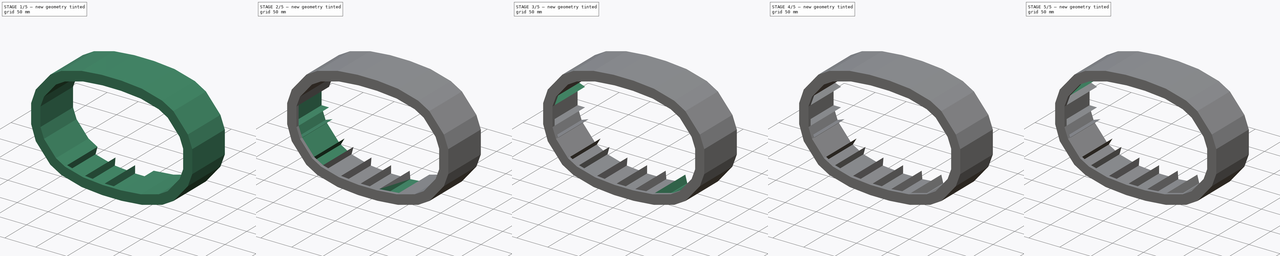
[diagram: build sequence overview — one tinted view per stage of 5, left to right]
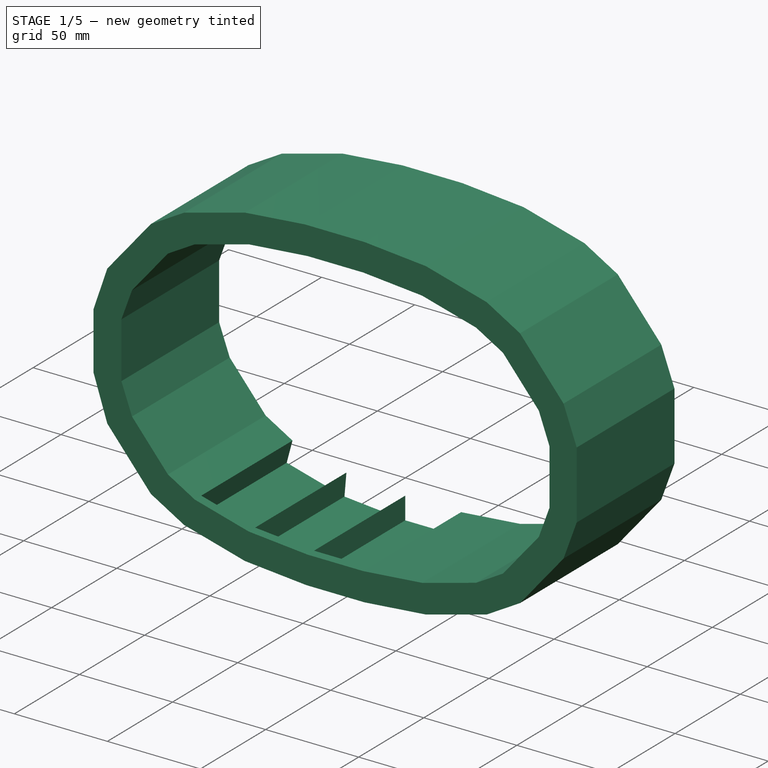
[diagram: stage 1 of 5 — iso view after this stage's code; geometry added in this stage tinted green]
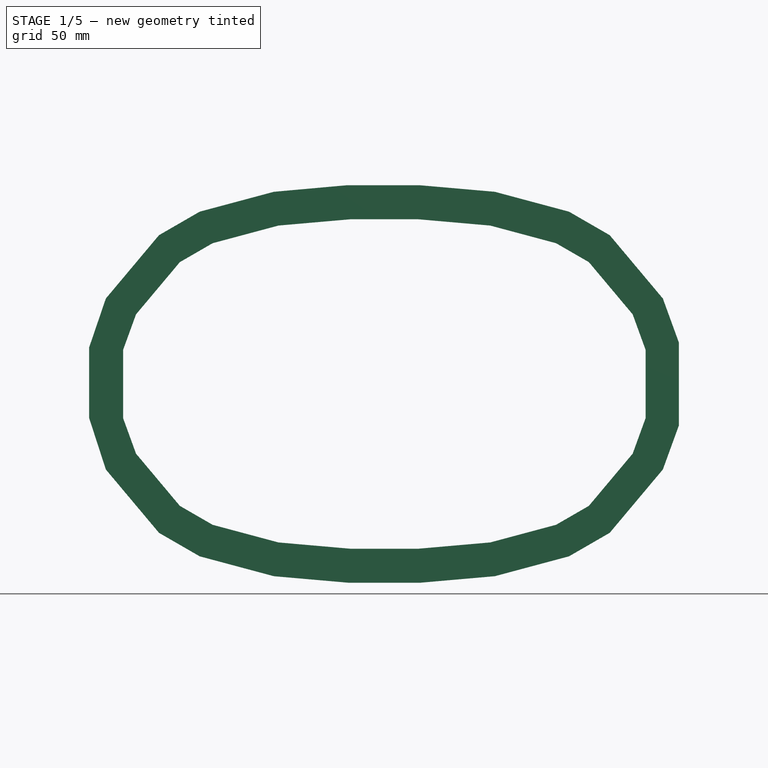
[diagram: stage 1 of 5 — front view after this stage's code; geometry added in this stage tinted green]
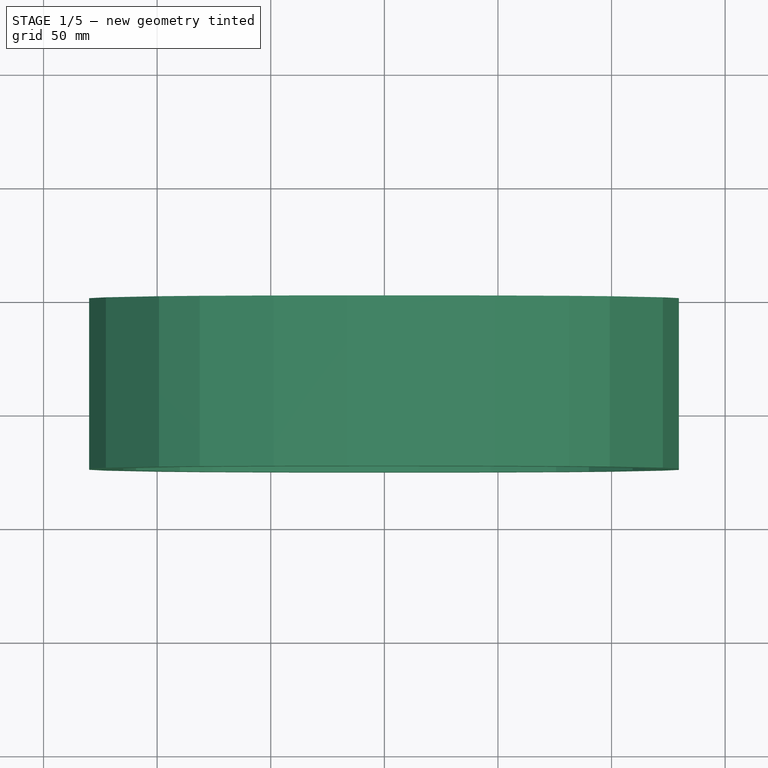
[diagram: stage 1 of 5 — top view after this stage's code; geometry added in this stage tinted green]
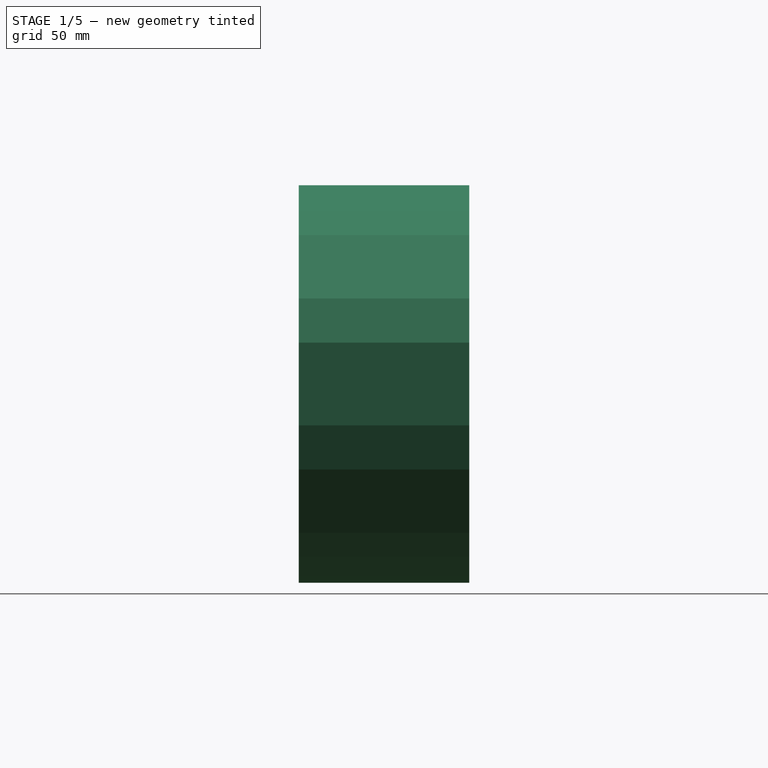
[diagram: stage 1 of 5 — right view after this stage's code; geometry added in this stage tinted green]
FCSTD DOCUMENT  (FreeCAD 0.19R24291 (Git))
Label: top_spr_modl_shell01
License: All rights reserved
LicenseURL: http://en.wikipedia.org/wiki/All_rights_reserved
objects: PartDesign::Pocket×24, PartDesign::Pad×2, Spreadsheet::Sheet×1, Sketcher::SketchObject×1, PartDesign::Body×1
note: 54 computed .brp shape members not serialized (recipe doc carries the construction recipe); baked Part::Feature solids carry a one-line shape summary decoded from their .brp

FEATURE [Spreadsheet::Sheet] Spreadsheet
  cells = B2=top ; C2=spring; D2=module; B4=horizon; C4(hrz)=230; B5=vertical; C5(vrt)=145; B6=spring place; C6(spl)=30; B7=angle10; C7(an10)=5; B8=angle20; C8(an20)=15; B9=angl30; C9(an30)=30; B10=angl50; C10(an50)=50; B11=an70; C11(an70)=70; B12=pockt; C12(pct)=12
FEATURE [Sketcher::SketchObject] Sketch
  FullyConstrained = false
  MapMode = 5
  Placement = pos=(0,0,0) rot=(1,0,0;1.5708rad)
  Support = -> [XZ_Plane]
  expr: Constraints[24] = Spreadsheet.an70
  expr: Constraints[21] = Spreadsheet.an50
  expr: Constraints[18] = Spreadsheet.an30
  expr: Constraints[16] = Spreadsheet.an20
  expr: Constraints[20] = Spreadsheet.spl
  expr: Constraints[15] = Spreadsheet.spl
  expr: Constraints[11] = Spreadsheet.hrz
  expr: Constraints[13] = Spreadsheet.an10
  expr: Constraints[7] = Spreadsheet.spl
  expr: Constraints[6] = Spreadsheet.vrt
  expr: Constraints[2] = Spreadsheet.spl
  sketch-geometry (48):
    g0: LineSegment StartX=-115 StartY=15 StartZ=0 EndX=-115 EndY=-15 EndZ=0
    g1: LineSegment StartX=115 StartY=15 StartZ=0 EndX=115 EndY=-15 EndZ=0
    g2: LineSegment StartX=-15 StartY=72.5 StartZ=0 EndX=15 EndY=72.5 EndZ=0
    g3: LineSegment StartX=-15 StartY=-72.5 StartZ=0 EndX=15 EndY=-72.5 EndZ=0
    g4: LineSegment StartX=15 StartY=72.5 StartZ=0 EndX=46.6098 EndY=69.7345 EndZ=0
    g5: LineSegment StartX=46.6098 StartY=69.7345 StartZ=0 EndX=75.5875 EndY=61.9699 EndZ=0
    g6: LineSegment StartX=75.5875 StartY=61.9699 StartZ=0 EndX=90.0175 EndY=53.6388 EndZ=0
    g7: LineSegment StartX=90.0175 StartY=53.6388 StartZ=0 EndX=109.301 EndY=30.6574 EndZ=0
    g8: LineSegment StartX=109.301 StartY=30.6574 StartZ=0 EndX=115 EndY=15 EndZ=0
    g9: LineSegment StartX=-15 StartY=72.5 StartZ=0 EndX=-46.6098 EndY=69.7345 EndZ=0
    g10: LineSegment StartX=-46.6098 StartY=69.7345 StartZ=0 EndX=-75.5875 EndY=61.9699 EndZ=0
    g11: LineSegment StartX=-75.5875 StartY=61.9699 StartZ=0 EndX=-90.0175 EndY=53.6388 EndZ=0
    g12: LineSegment StartX=-90.0175 StartY=53.6388 StartZ=0 EndX=-109.301 EndY=30.6574 EndZ=0
    g13: LineSegment StartX=-109.301 StartY=30.6574 StartZ=0 EndX=-115 EndY=15 EndZ=0
    g14: LineSegment StartX=-115 StartY=-15 StartZ=0 EndX=-109.301 EndY=-30.6574 EndZ=0
    g15: LineSegment StartX=-109.301 StartY=-30.6574 StartZ=0 EndX=-90.0175 EndY=-53.6388 EndZ=0
    g16: LineSegment StartX=-90.0175 StartY=-53.6388 StartZ=0 EndX=-75.5875 EndY=-61.9699 EndZ=0
    g17: LineSegment StartX=-75.5875 StartY=-61.9699 StartZ=0 EndX=-46.6098 EndY=-69.7345 EndZ=0
    g18: LineSegment StartX=-46.6098 StartY=-69.7345 StartZ=0 EndX=-15 EndY=-72.5 EndZ=0
    g19: LineSegment StartX=15 StartY=-72.5 StartZ=0 EndX=46.6098 EndY=-69.7345 EndZ=0
    g20: LineSegment StartX=46.6098 StartY=-69.7345 StartZ=0 EndX=75.5875 EndY=-61.9699 EndZ=0
    g21: LineSegment StartX=75.5875 StartY=-61.9699 StartZ=0 EndX=90.0175 EndY=-53.6388 EndZ=0
    g22: LineSegment StartX=90.0175 StartY=-53.6388 StartZ=0 EndX=109.301 EndY=-30.6574 EndZ=0
    g23: LineSegment StartX=109.301 StartY=-30.6574 StartZ=0 EndX=115 EndY=-15 EndZ=0
    g24: LineSegment StartX=15.6005 StartY=87.488 StartZ=0 EndX=-16.4336 EndY=87.488 EndZ=0
    g25: LineSegment StartX=-16.4336 StartY=87.488 StartZ=0 EndX=-48.621 EndY=84.5991 EndZ=0
    g26: LineSegment StartX=-48.621 StartY=84.5991 StartZ=0 EndX=-81.2781 EndY=75.8486 EndZ=0
    g27: LineSegment StartX=-81.2781 StartY=75.8486 StartZ=0 EndX=-99.1916 EndY=65.5062 EndZ=0
    g28: LineSegment StartX=-99.1916 StartY=65.5062 StartZ=0 EndX=-122.581 EndY=37.6314 EndZ=0
    g29: LineSegment StartX=-122.581 StartY=37.6314 StartZ=0 EndX=-129.966 EndY=16.0129 EndZ=0
    g30: LineSegment StartX=-129.966 StartY=16.0129 StartZ=0 EndX=-129.966 EndY=-14.8749 EndZ=0
    g31: LineSegment StartX=-129.966 StartY=-14.8749 StartZ=0 EndX=-122.581 EndY=-37.6314 EndZ=0
    g32: LineSegment StartX=-122.581 StartY=-37.6314 StartZ=0 EndX=-99.1916 EndY=-65.5062 EndZ=0
    g33: LineSegment StartX=-99.1916 StartY=-65.5062 StartZ=0 EndX=-81.2781 EndY=-75.8486 EndZ=0
    g34: LineSegment StartX=-81.2781 StartY=-75.8486 StartZ=0 EndX=-48.621 EndY=-84.5991 EndZ=0
    g35: LineSegment StartX=-48.621 StartY=-84.5991 StartZ=0 EndX=-15.6005 EndY=-87.488 EndZ=0
    g36: LineSegment StartX=-15.6005 StartY=-87.488 StartZ=0 EndX=15.6005 EndY=-87.488 EndZ=0
    g37: LineSegment StartX=15.6005 StartY=-87.488 StartZ=0 EndX=48.621 EndY=-84.5991 EndZ=0
    g38: LineSegment StartX=48.621 StartY=-84.5991 StartZ=0 EndX=81.2781 EndY=-75.8486 EndZ=0
    g39: LineSegment StartX=81.2781 StartY=-75.8486 StartZ=0 EndX=99.1916 EndY=-65.5062 EndZ=0
    g40: LineSegment StartX=99.1916 StartY=-65.5062 StartZ=0 EndX=122.581 EndY=-37.6314 EndZ=0
    g41: LineSegment StartX=122.581 StartY=-37.6314 StartZ=0 EndX=129.656 EndY=-18.194 EndZ=0
    g42: LineSegment StartX=129.656 StartY=-18.194 StartZ=0 EndX=129.656 EndY=18.194 EndZ=0
    g43: LineSegment StartX=129.656 StartY=18.194 StartZ=0 EndX=122.581 EndY=37.6314 EndZ=0
    g44: LineSegment StartX=122.581 StartY=37.6314 StartZ=0 EndX=99.1916 EndY=65.5062 EndZ=0
    g45: LineSegment StartX=99.1916 StartY=65.5062 StartZ=0 EndX=81.2781 EndY=75.8486 EndZ=0
    g46: LineSegment StartX=81.2781 StartY=75.8486 StartZ=0 EndX=48.621 EndY=84.5991 EndZ=0
    g47: LineSegment StartX=48.621 StartY=84.5991 StartZ=0 EndX=15.6005 EndY=87.488 EndZ=0
  constraints (109):
    c: Vertical(g0)
    c: Horizontal(g3)
    c: DistanceX(g2,g2) = 30
    c: Symmetric(g2,g2,g-2)
    c: Equal(g3,g2)
    c: Symmetric(g2,g3,g-1)
    c: Distance(g3,g2) = 145
    c: DistanceY(g1,g1) = 30
    c: Equal(g1,g0)
    c: Symmetric(g1,g1,g-1)
    c: Symmetric(g1,g0,g-1)
    c: Distance(g1,g0) = 230
    c: Coincident(g4,g2)
    c: Angle(g4,g-1) = 0.0872665
    c: Coincident(g5,g4)
    c: Distance(g4,g5) = 30
    c: Angle(g5,g-1) = 0.261799
    c: Coincident(g6,g5)
    c: Angle(g6,g-1) = 0.523599
    c: Coincident(g7,g6)
    c: Distance(g6,g7) = 30
    c: Angle(g7,g-1) = 0.872665
    c: Coincident(g8,g7)
    c: Coincident(g8,g1)
    c: Angle(g8,g-1) = 1.22173
    c: Equal(g6,g8)
    c: Coincident(g9,g2)
    c: Symmetric(g9,g4,g-2)
    c: Coincident(g10,g9)
    c: Symmetric(g10,g5,g-2)
    c: Coincident(g11,g10)
    c: Symmetric(g11,g6,g-2)
    c: Coincident(g12,g11)
    c: Symmetric(g12,g7,g-2)
    c: Coincident(g13,g12)
    c: Coincident(g13,g0)
    c: Coincident(g14,g0)
    c: Coincident(g15,g14)
    c: Coincident(g16,g15)
    c: Coincident(g17,g16)
    c: Coincident(g18,g17)
    c: Coincident(g18,g3)
    c: Symmetric(g14,g7,g-1)
    c: Symmetric(g15,g6,g-1)
    c: Symmetric(g16,g5,g-1)
    c: Symmetric(g17,g4,g-1)
    c: Coincident(g19,g3)
    c: Coincident(g20,g19)
    c: Coincident(g21,g20)
    c: Coincident(g22,g21)
    c: Coincident(g23,g22)
    c: Coincident(g23,g1)
    c: Symmetric(g19,g4,g-1)
    c: Symmetric(g20,g5,g-1)
    c: Symmetric(g21,g6,g-1)
    c: Symmetric(g22,g7,g-1)
    c: Horizontal(g24)
    c: Coincident(g25,g24)
    c: Coincident(g26,g25)
    c: Coincident(g27,g26)
    c: Coincident(g28,g27)
    c: Coincident(g29,g28)
    c: Coincident(g30,g29)
    c: Vertical(g30)
    c: Coincident(g31,g30)
    c: Coincident(g32,g31)
    c: Coincident(g33,g32)
    c: Coincident(g34,g33)
    c: Coincident(g35,g34)
    c: Coincident(g36,g35)
    c: Coincident(g37,g36)
    c: Coincident(g38,g37)
    c: Coincident(g39,g38)
    c: Coincident(g40,g39)
    c: Coincident(g41,g40)
    c: Coincident(g42,g41)
    c: Coincident(g43,g42)
    c: Coincident(g44,g43)
    c: Coincident(g45,g44)
    c: Coincident(g46,g45)
    c: Coincident(g47,g46)
    c: Coincident(g47,g24)
    c: Distance(g2,g24) = 15
    c: Distance(g0,g29) = 15
    c: Distance(g1,g42) = 15
    c: Distance(g7,g43) = 15
    c: Distance(g6,g44) = 15
    c: Distance(g5,g45) = 15
    c: Distance(g46,g4) = 15
    c: Parallel(g5,g46)
    c: Parallel(g6,g45)
    c: Parallel(g7,g44)
    c: Parallel(g8,g43)
    c: Parallel(g4,g47)
    c: Symmetric(g42,g41,g-1)
    c: Symmetric(g40,g43,g-1)
    c: Symmetric(g39,g44,g-1)
    c: Symmetric(g38,g45,g-1)
    c: Symmetric(g37,g46,g-1)
    c: Symmetric(g36,g24,g-1)
    c: Symmetric(g35,g24,g-1)
    c: Symmetric(g34,g46,g-1)
    c: Symmetric(g33,g45,g-1)
    c: Symmetric(g32,g44,g-1)
    c: Symmetric(g31,g43,g-1)
    c: Symmetric(g31,g28,g-1)
    c: Symmetric(g32,g27,g-1)
    c: Symmetric(g33,g26,g-1)
    c: Symmetric(g34,g25,g-1)
FEATURE [PartDesign::Pad] Pad
  Direction = (1,1,1)
  Length = 70
  Length2 = 100
  Placement = pos=(0,0,0) rot=(1,0,0;1.5708rad)
  Profile = -> Sketch
  Type = 0
FEATURE [PartDesign::Pad] Pad001
  BaseFeature = -> Pad
  Direction = (1,1,1)
  Length = 5
  Length2 = 100
  Placement = pos=(0,0,0) rot=(1,0,0;1.5708rad)
  Profile = -> Pad [Face50]
  Type = 0
FEATURE [PartDesign::Pocket] Pocket
  BaseFeature = -> Pad001
  Length = 12
  Length2 = 100
  Placement = pos=(0,0,0) rot=(1,0,0;1.5708rad)
  Profile = -> Pad001 [Face43]
  Type = 0
  expr: Length = Spreadsheet.pct
FEATURE [PartDesign::Pocket] Pocket001
  BaseFeature = -> Pocket
  Length = 12
  Length2 = 100
  Placement = pos=(0,0,0) rot=(1,0,0;1.5708rad)
  Profile = -> Pocket [Face41]
  Type = 0
  expr: Length = Spreadsheet.pct
FEATURE [PartDesign::Pocket] Pocket002
  BaseFeature = -> Pocket001
  Length = 12
  Length2 = 100
  Placement = pos=(0,0,0) rot=(1,0,0;1.5708rad)
  Profile = -> Pocket001 [Face44]
  Type = 0
  expr: Length = Spreadsheet.pct
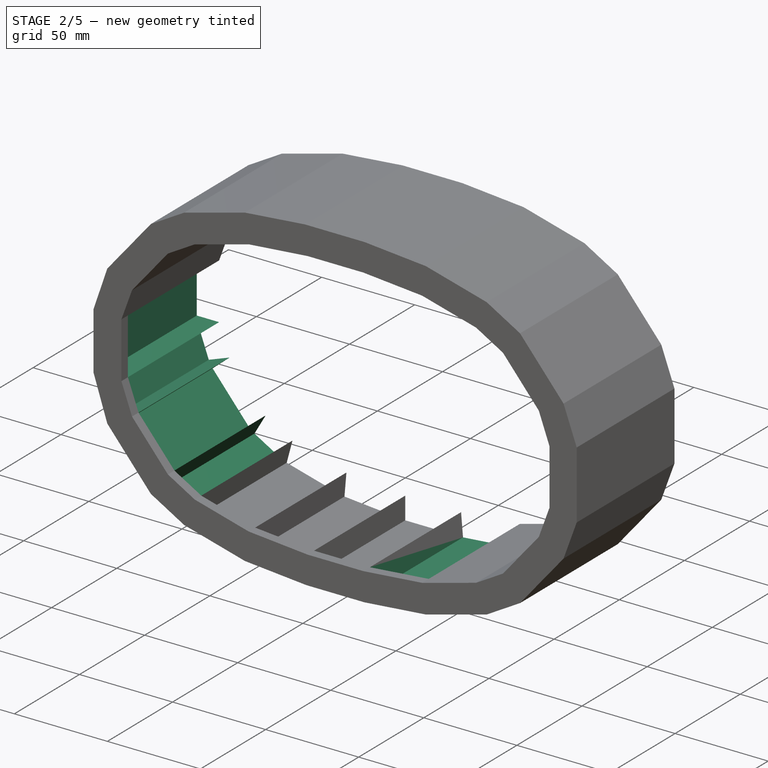
[diagram: stage 2 of 5 — iso view after this stage's code; geometry added in this stage tinted green]
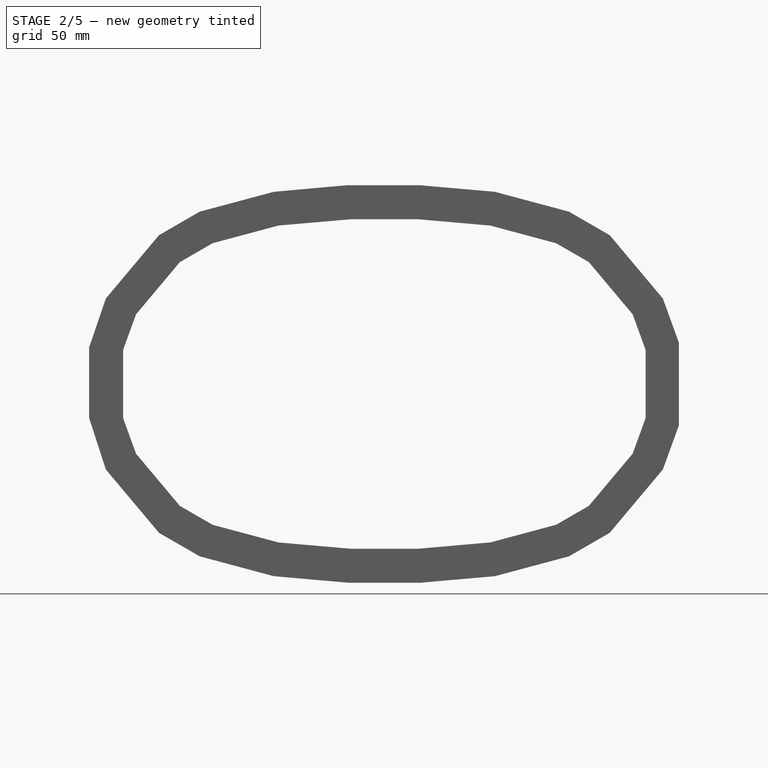
[diagram: stage 2 of 5 — front view after this stage's code; geometry added in this stage tinted green]
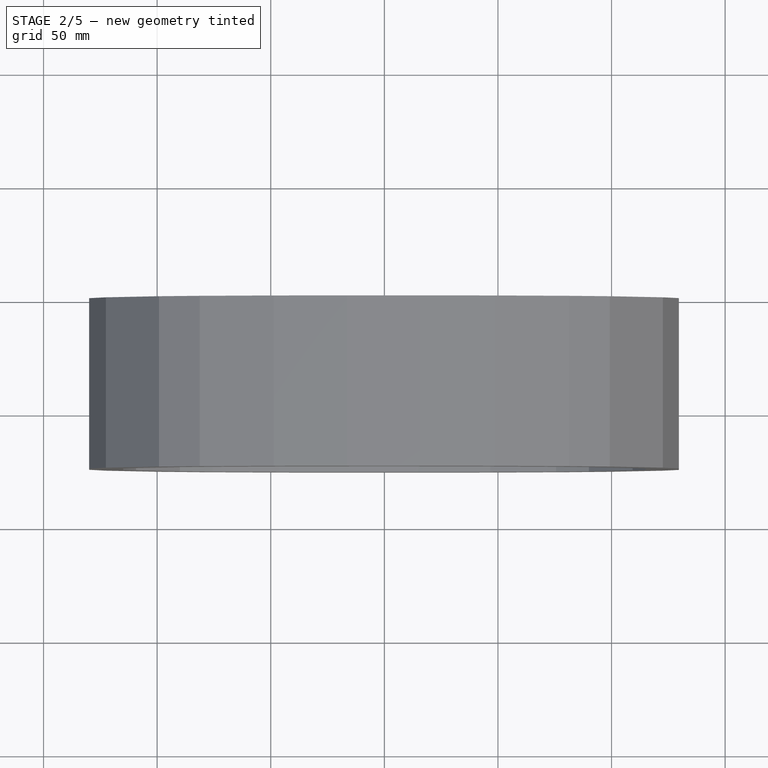
[diagram: stage 2 of 5 — top view after this stage's code; geometry added in this stage tinted green]
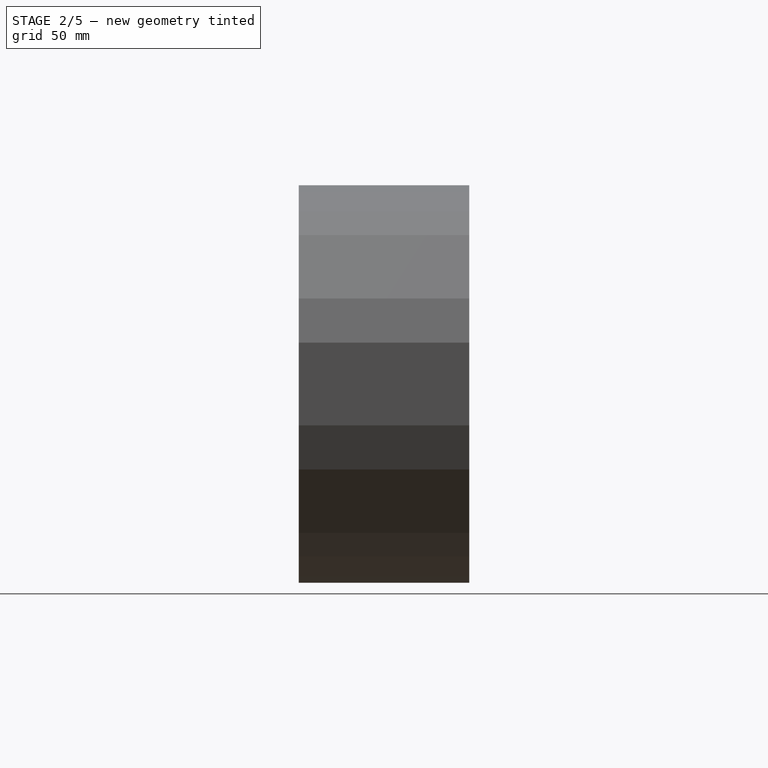
[diagram: stage 2 of 5 — right view after this stage's code; geometry added in this stage tinted green]
FEATURE [PartDesign::Pocket] Pocket003
  BaseFeature = -> Pocket002
  Length = 12
  Length2 = 100
  Placement = pos=(0,0,0) rot=(1,0,0;1.5708rad)
  Profile = -> Pocket002 [Face47]
  Type = 0
  expr: Length = Spreadsheet.pct
FEATURE [PartDesign::Pocket] Pocket004
  BaseFeature = -> Pocket003
  Length = 12
  Length2 = 100
  Placement = pos=(0,0,0) rot=(1,0,0;1.5708rad)
  Profile = -> Pocket003 [Face37]
  Type = 0
  expr: Length = Spreadsheet.pct
FEATURE [PartDesign::Pocket] Pocket005
  BaseFeature = -> Pocket004
  Length = 12
  Length2 = 100
  Placement = pos=(0,0,0) rot=(1,0,0;1.5708rad)
  Profile = -> Pocket004 [Face36]
  Type = 0
  expr: Length = Spreadsheet.pct
FEATURE [PartDesign::Pocket] Pocket006
  BaseFeature = -> Pocket005
  Length = 12
  Length2 = 100
  Placement = pos=(0,0,0) rot=(1,0,0;1.5708rad)
  Profile = -> Pocket005 [Face35]
  Type = 0
  expr: Length = Spreadsheet.pct
FEATURE [PartDesign::Pocket] Pocket007
  BaseFeature = -> Pocket006
  Length = 12
  Length2 = 100
  Placement = pos=(0,0,0) rot=(1,0,0;1.5708rad)
  Profile = -> Pocket006 [Face34]
  Type = 0
  expr: Length = Spreadsheet.pct
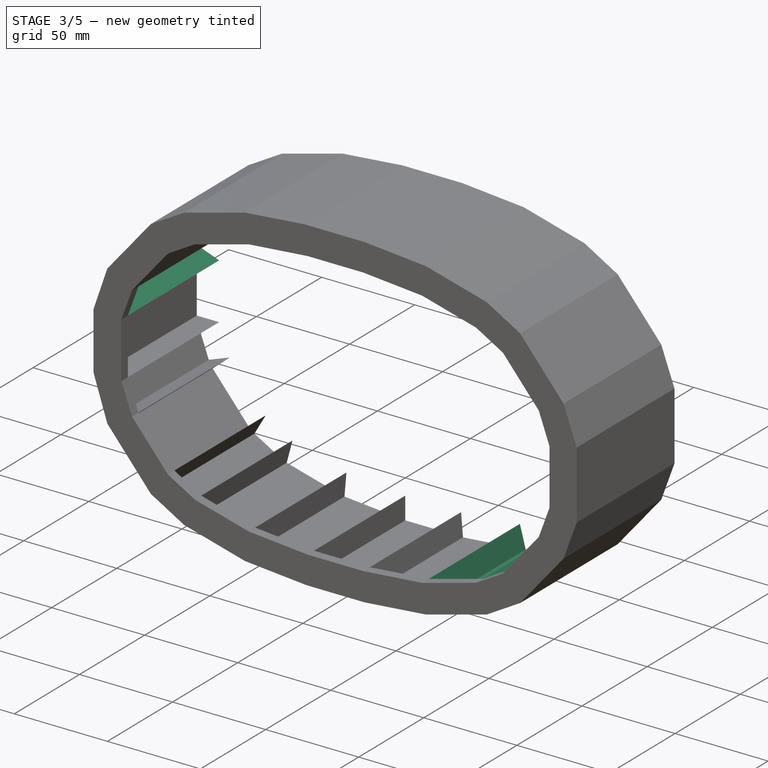
[diagram: stage 3 of 5 — iso view after this stage's code; geometry added in this stage tinted green]
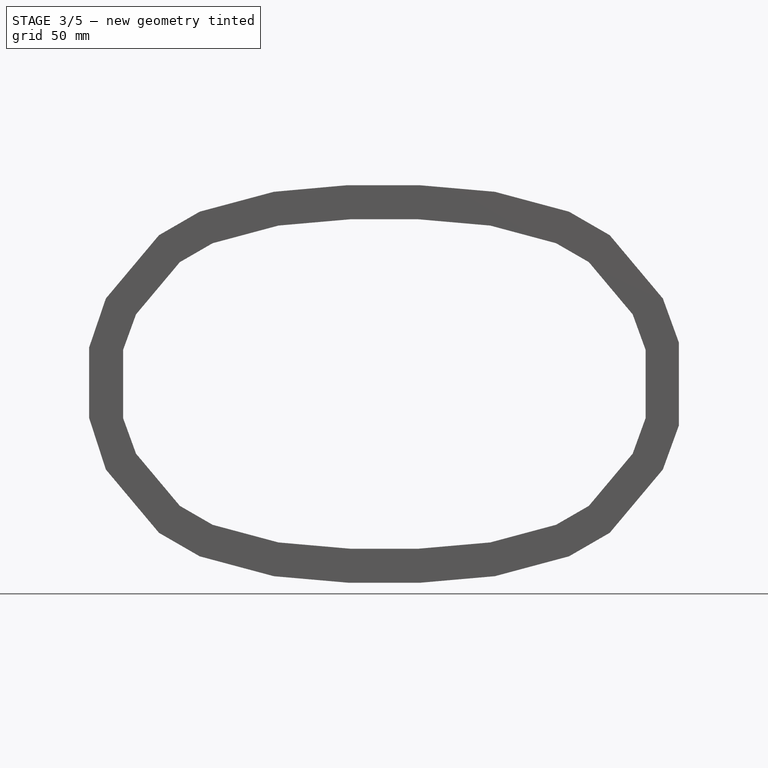
[diagram: stage 3 of 5 — front view after this stage's code; geometry added in this stage tinted green]
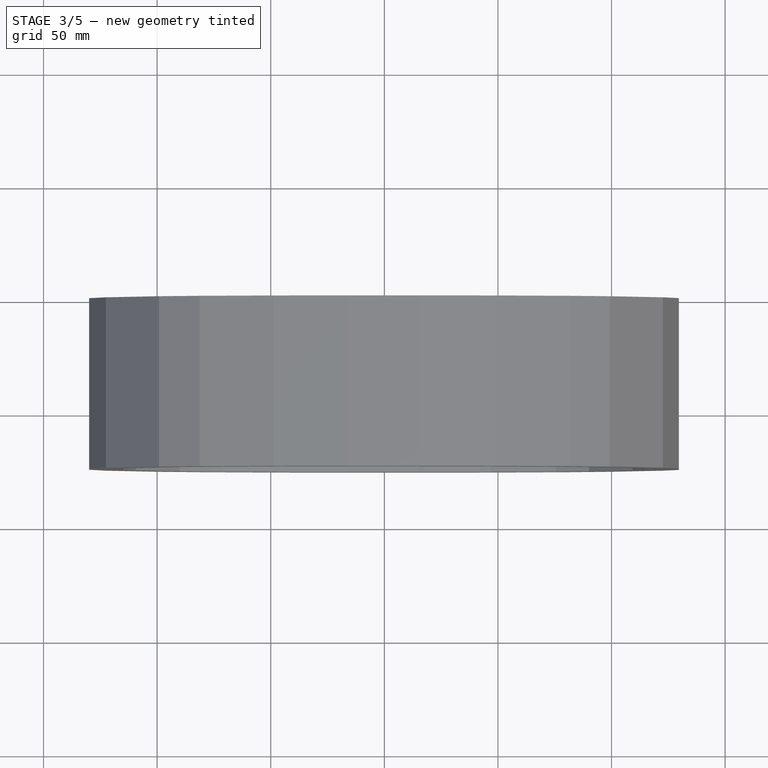
[diagram: stage 3 of 5 — top view after this stage's code; geometry added in this stage tinted green]
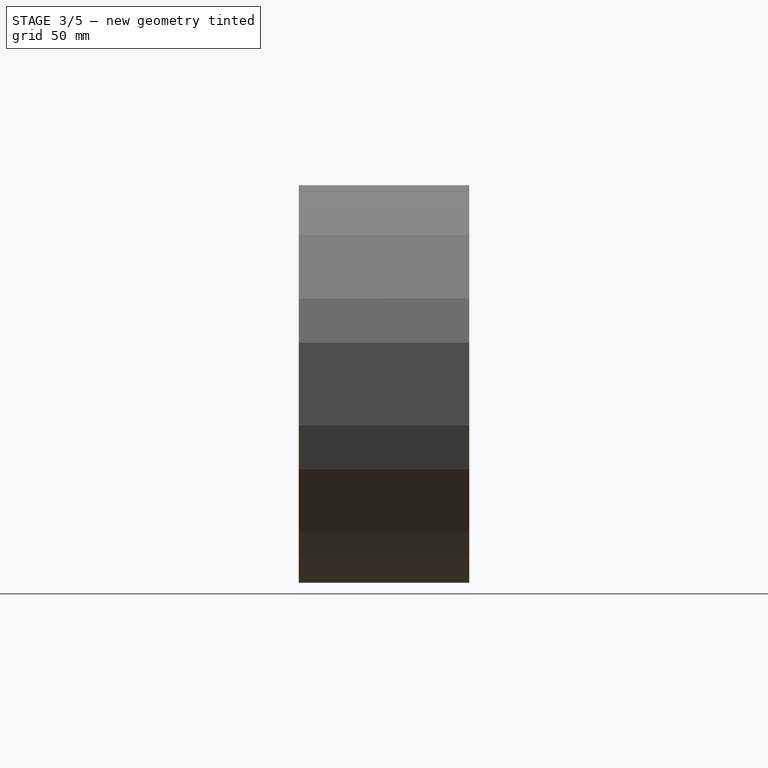
[diagram: stage 3 of 5 — right view after this stage's code; geometry added in this stage tinted green]
FEATURE [PartDesign::Pocket] Pocket008
  BaseFeature = -> Pocket007
  Length = 12
  Length2 = 100
  Placement = pos=(0,0,0) rot=(1,0,0;1.5708rad)
  Profile = -> Pocket007 [Face33]
  Type = 0
  expr: Length = Spreadsheet.pct
FEATURE [PartDesign::Pocket] Pocket009
  BaseFeature = -> Pocket008
  Length = 12
  Length2 = 100
  Placement = pos=(0,0,0) rot=(1,0,0;1.5708rad)
  Profile = -> Pocket008 [Face60]
  Type = 0
  expr: Length = Spreadsheet.pct
FEATURE [PartDesign::Pocket] Pocket010
  BaseFeature = -> Pocket009
  Length = 12
  Length2 = 100
  Placement = pos=(0,0,0) rot=(1,0,0;1.5708rad)
  Profile = -> Pocket009 [Face63]
  Type = 0
  expr: Length = Spreadsheet.pct
FEATURE [PartDesign::Pocket] Pocket011
  BaseFeature = -> Pocket010
  Length = 12
  Length2 = 100
  Placement = pos=(0,0,0) rot=(1,0,0;1.5708rad)
  Profile = -> Pocket010 [Face66]
  Type = 0
  expr: Length = Spreadsheet.pct
FEATURE [PartDesign::Pocket] Pocket012
  BaseFeature = -> Pocket011
  Length = 12
  Length2 = 100
  Placement = pos=(0,0,0) rot=(1,0,0;1.5708rad)
  Profile = -> Pocket011 [Face69]
  Type = 0
  expr: Length = Spreadsheet.pct
FEATURE [PartDesign::Pocket] Pocket013
  BaseFeature = -> Pocket012
  Length = 12
  Length2 = 100
  Placement = pos=(0,0,0) rot=(1,0,0;1.5708rad)
  Profile = -> Pocket012 [Face72]
  Type = 0
  expr: Length = Spreadsheet.pct
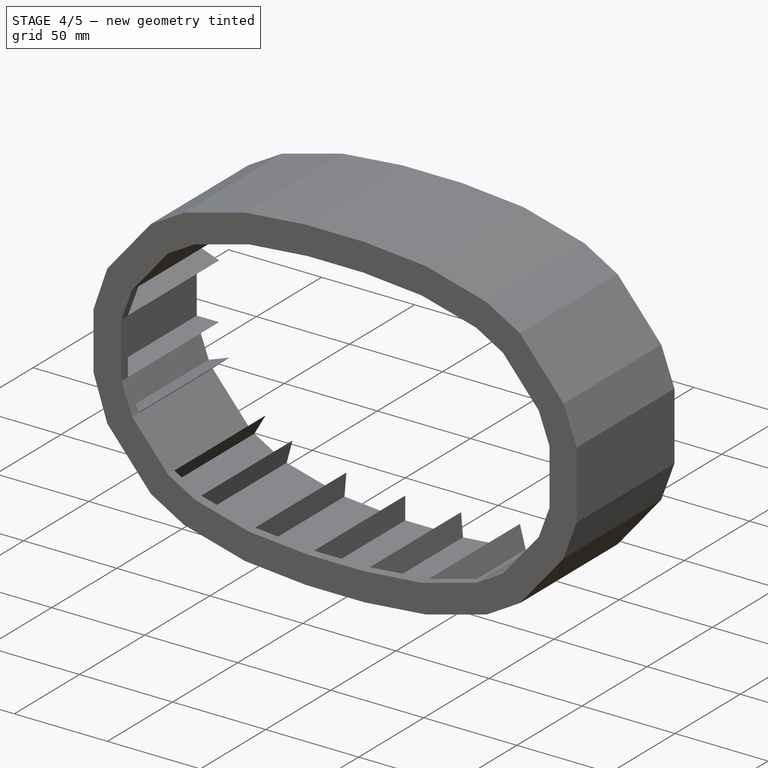
[diagram: stage 4 of 5 — iso view after this stage's code; geometry added in this stage tinted green]
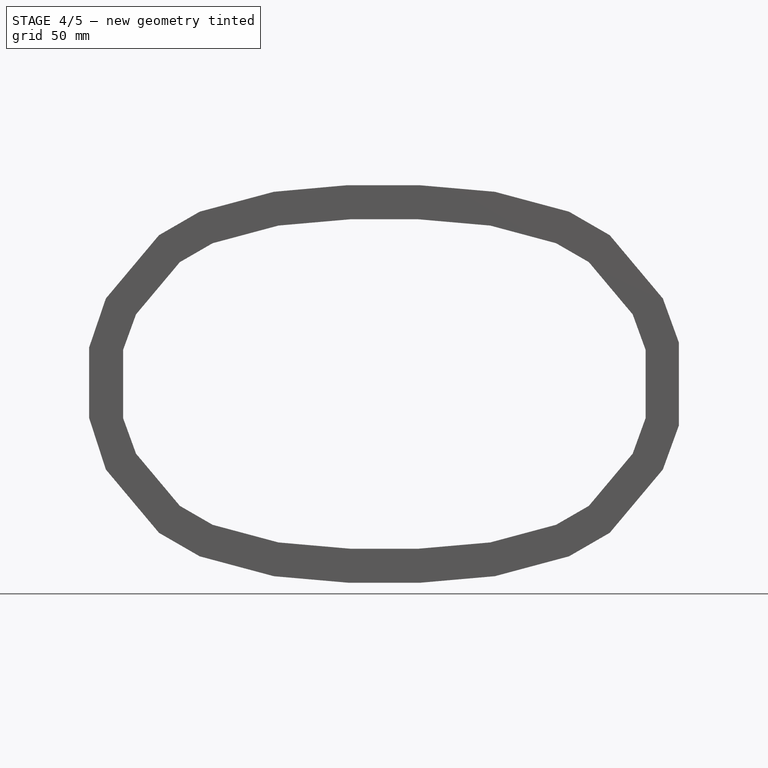
[diagram: stage 4 of 5 — front view after this stage's code; geometry added in this stage tinted green]
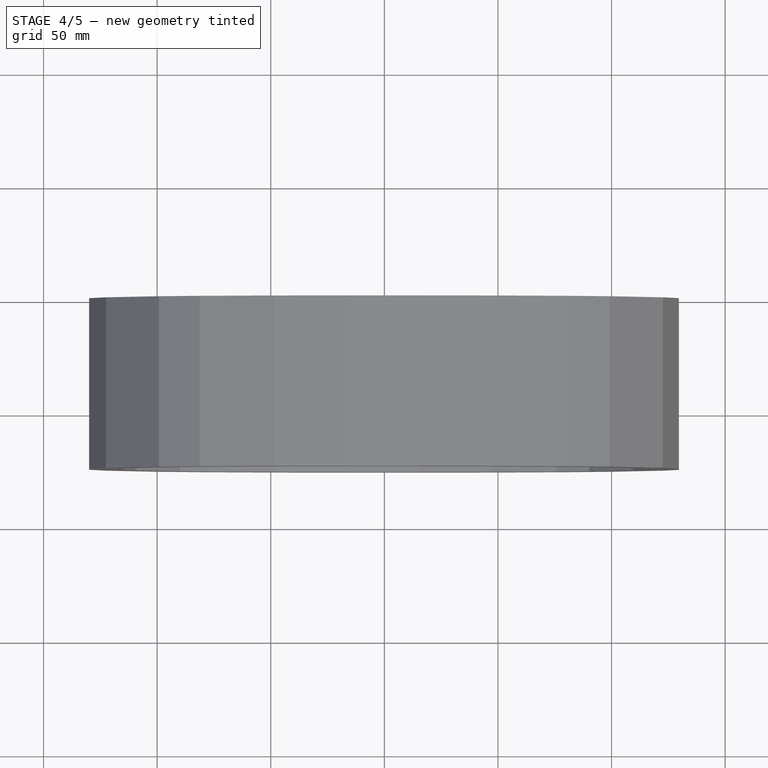
[diagram: stage 4 of 5 — top view after this stage's code; geometry added in this stage tinted green]
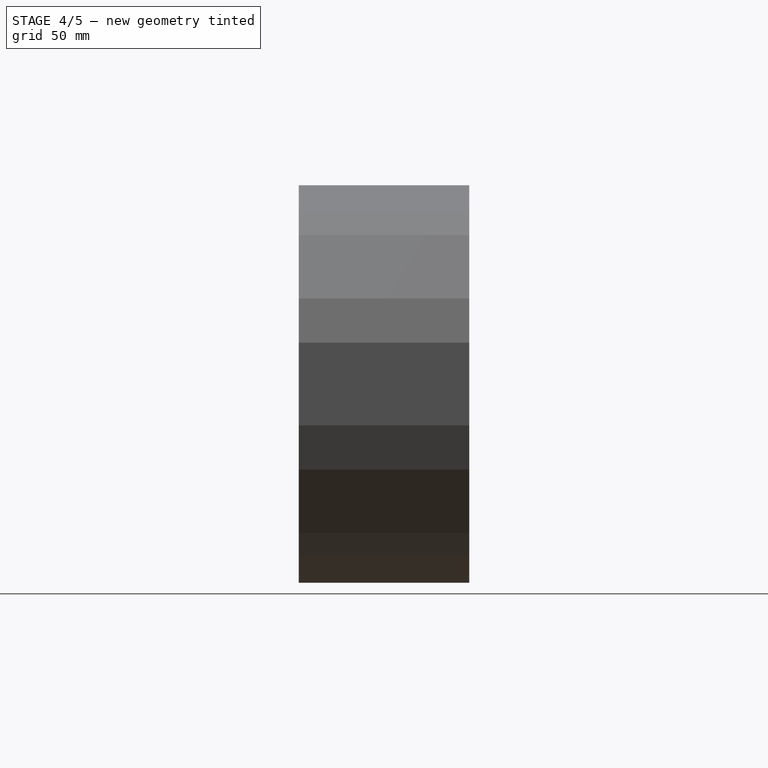
[diagram: stage 4 of 5 — right view after this stage's code; geometry added in this stage tinted green]
FEATURE [PartDesign::Pocket] Pocket014
  BaseFeature = -> Pocket013
  Length = 12
  Length2 = 100
  Placement = pos=(0,0,0) rot=(1,0,0;1.5708rad)
  Profile = -> Pocket013 [Face75]
  Type = 0
  expr: Length = Spreadsheet.pct
FEATURE [PartDesign::Pocket] Pocket015
  BaseFeature = -> Pocket014
  Length = 12
  Length2 = 100
  Placement = pos=(0,0,0) rot=(1,0,0;1.5708rad)
  Profile = -> Pocket014 [Face78]
  Type = 0
  expr: Length = Spreadsheet.pct
FEATURE [PartDesign::Pocket] Pocket016
  BaseFeature = -> Pocket015
  Length = 12
  Length2 = 100
  Placement = pos=(0,0,0) rot=(1,0,0;1.5708rad)
  Profile = -> Pocket015 [Face81]
  Type = 0
  expr: Length = Spreadsheet.pct
FEATURE [PartDesign::Pocket] Pocket017
  BaseFeature = -> Pocket016
  Length = 12
  Length2 = 100
  Placement = pos=(0,0,0) rot=(1,0,0;1.5708rad)
  Profile = -> Pocket016 [Face84]
  Type = 0
  expr: Length = Spreadsheet.pct
FEATURE [PartDesign::Pocket] Pocket018
  BaseFeature = -> Pocket017
  Length = 12
  Length2 = 100
  Placement = pos=(0,0,0) rot=(1,0,0;1.5708rad)
  Profile = -> Pocket017 [Face87]
  Type = 0
  expr: Length = Spreadsheet.pct
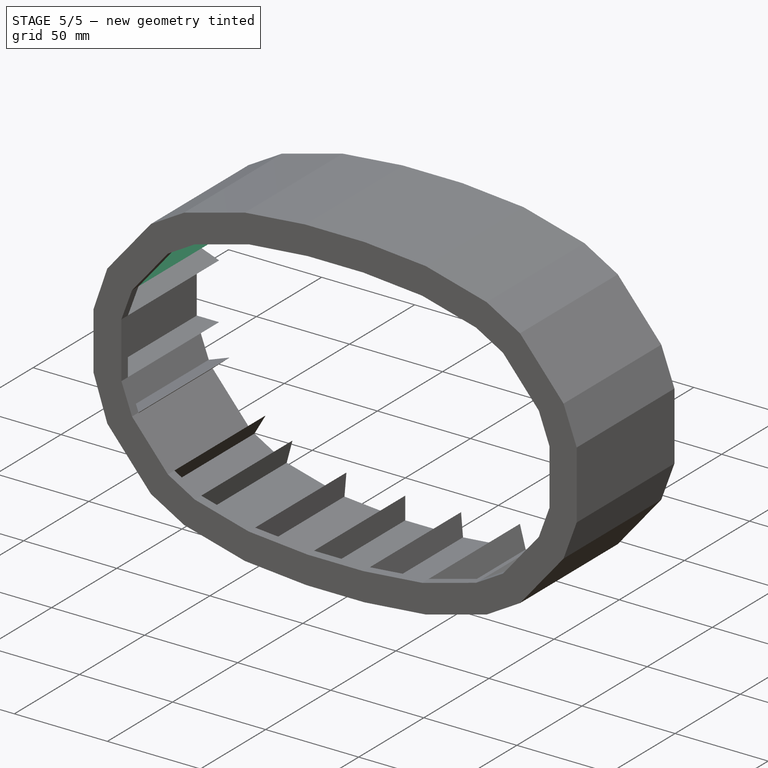
[diagram: stage 5 of 5 — iso view after this stage's code; geometry added in this stage tinted green]
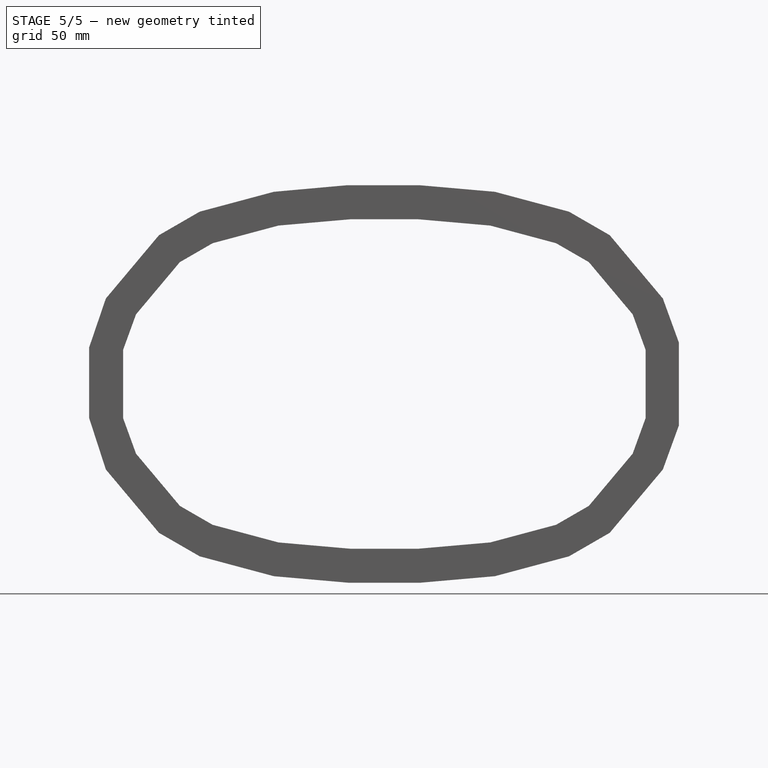
[diagram: stage 5 of 5 — front view after this stage's code; geometry added in this stage tinted green]
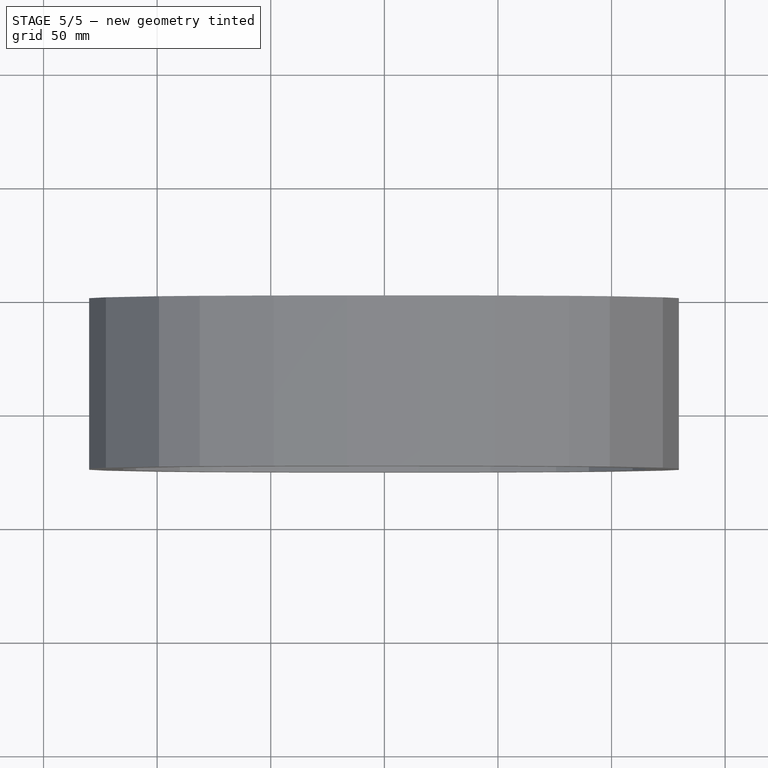
[diagram: stage 5 of 5 — top view after this stage's code; geometry added in this stage tinted green]
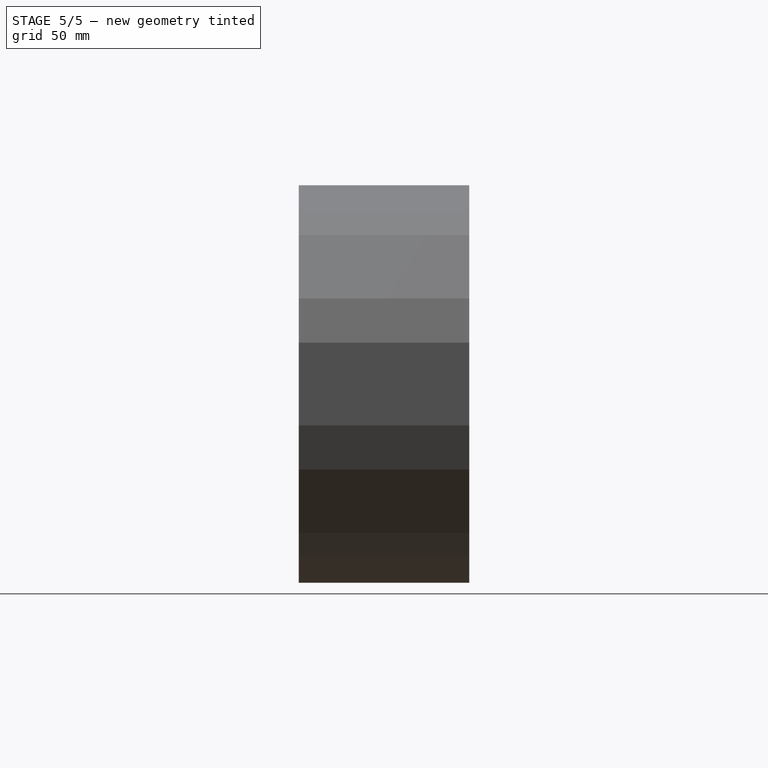
[diagram: stage 5 of 5 — right view after this stage's code; geometry added in this stage tinted green]
FEATURE [PartDesign::Pocket] Pocket019
  BaseFeature = -> Pocket018
  Length = 12
  Length2 = 100
  Placement = pos=(0,0,0) rot=(1,0,0;1.5708rad)
  Profile = -> Pocket018 [Face32]
  Type = 0
  expr: Length = Spreadsheet.pct
FEATURE [PartDesign::Pocket] Pocket020
  BaseFeature = -> Pocket019
  Length = 12
  Length2 = 100
  Placement = pos=(0,0,0) rot=(1,0,0;1.5708rad)
  Profile = -> Pocket019 [Face31]
  Type = 0
  expr: Length = Spreadsheet.pct
FEATURE [PartDesign::Pocket] Pocket021
  BaseFeature = -> Pocket020
  Length = 12
  Length2 = 100
  Placement = pos=(0,0,0) rot=(1,0,0;1.5708rad)
  Profile = -> Pocket020 [Face30]
  Type = 0
  expr: Length = Spreadsheet.pct
FEATURE [PartDesign::Pocket] Pocket022
  BaseFeature = -> Pocket021
  Length = 12
  Length2 = 100
  Placement = pos=(0,0,0) rot=(1,0,0;1.5708rad)
  Profile = -> Pocket021 [Face29]
  Type = 0
  expr: Length = Spreadsheet.pct
FEATURE [PartDesign::Pocket] Pocket023
  BaseFeature = -> Pocket022
  Length = 12
  Length2 = 100
  Placement = pos=(0,0,0) rot=(1,0,0;1.5708rad)
  Profile = -> Pocket022 [Face98]
  Type = 0
  expr: Length = Spreadsheet.pct
FEATURE [PartDesign::Body] Body
  Group = -> [Sketch,Pad,Pad001,Pocket,Pocket001,Pocket002,Pocket003,Pocket004,Pocket005,Pocket006,Pocket007,Pocket008,Pocket009,Pocket010,Pocket011,Pocket012,Pocket013,Pocket014,Pocket015,Pocket016,Pocket017,Pocket018,Pocket019,Pocket020,Pocket021,Pocket022,Pocket023]
  Origin = -> Origin
  Tip = -> Pocket023
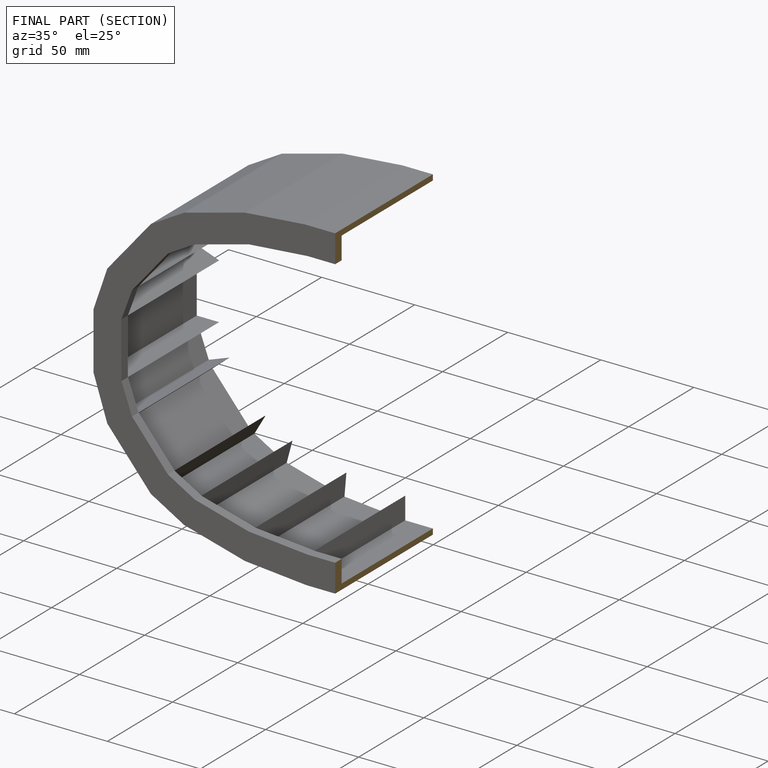
[diagram: finished part — half-section view (interior)]
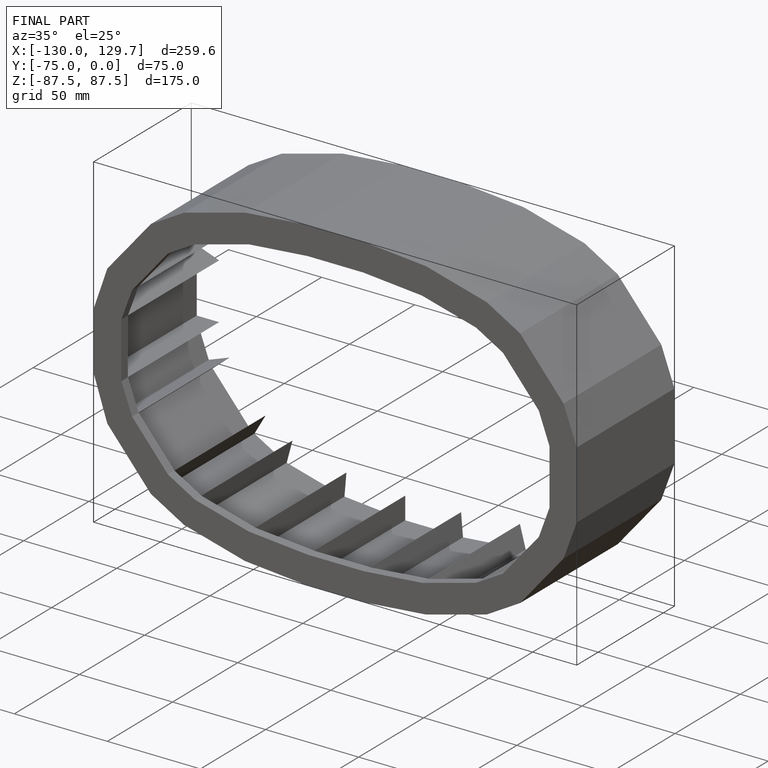
[diagram: finished part — iso view with bounding-box wireframe]
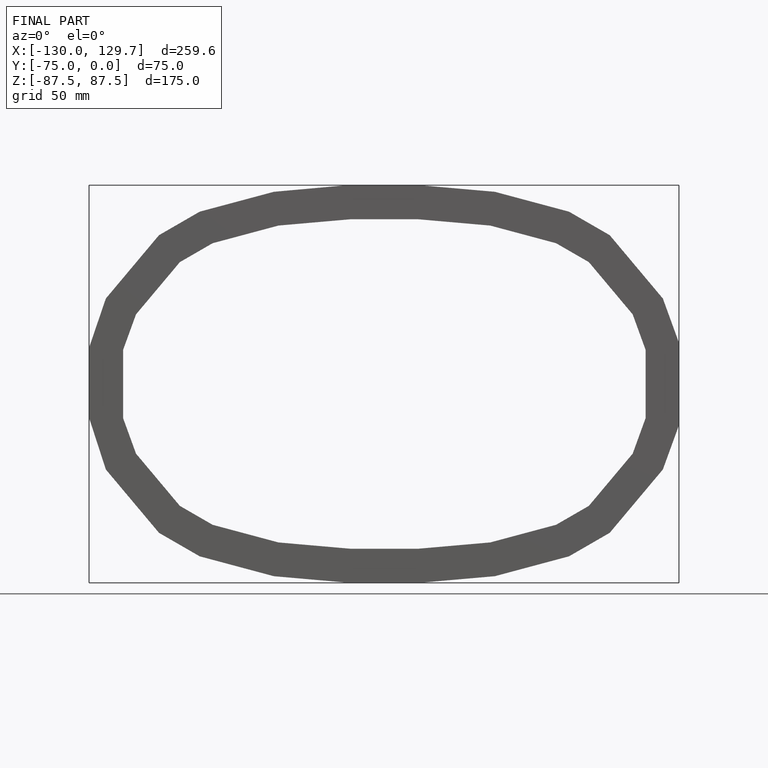
[diagram: finished part — front view with bounding-box wireframe]
